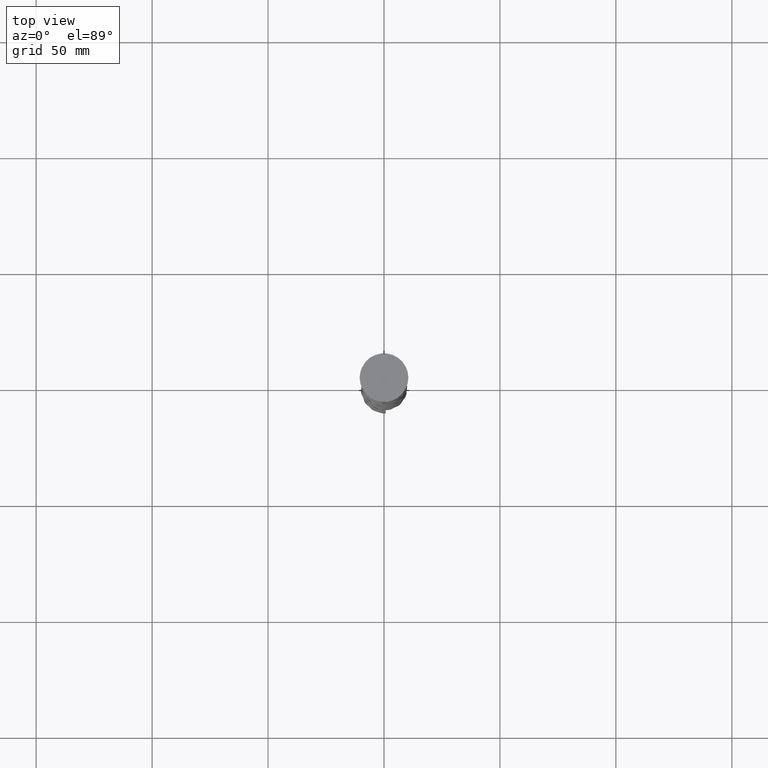
[diagram: clean part render]
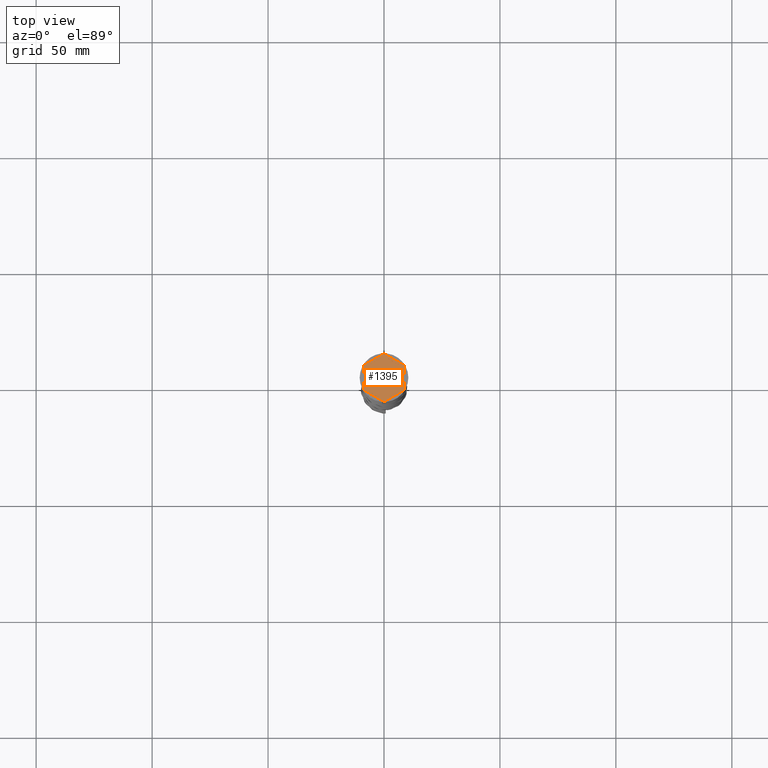
[diagram: same view with one face highlighted and labeled with its STEP entity id]
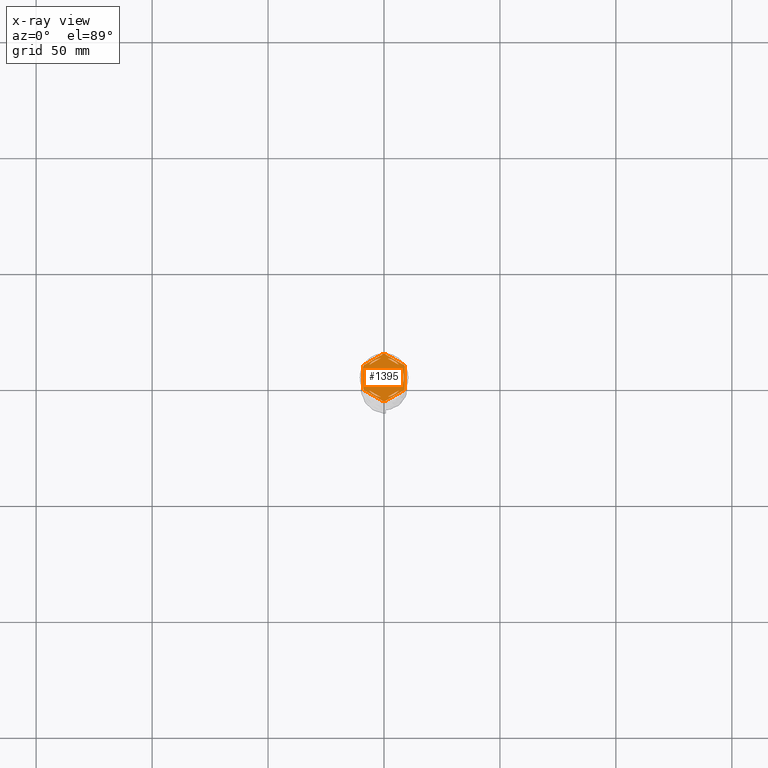
[diagram: x-ray of the same camera — body ghosted, the highlighted face saturated]
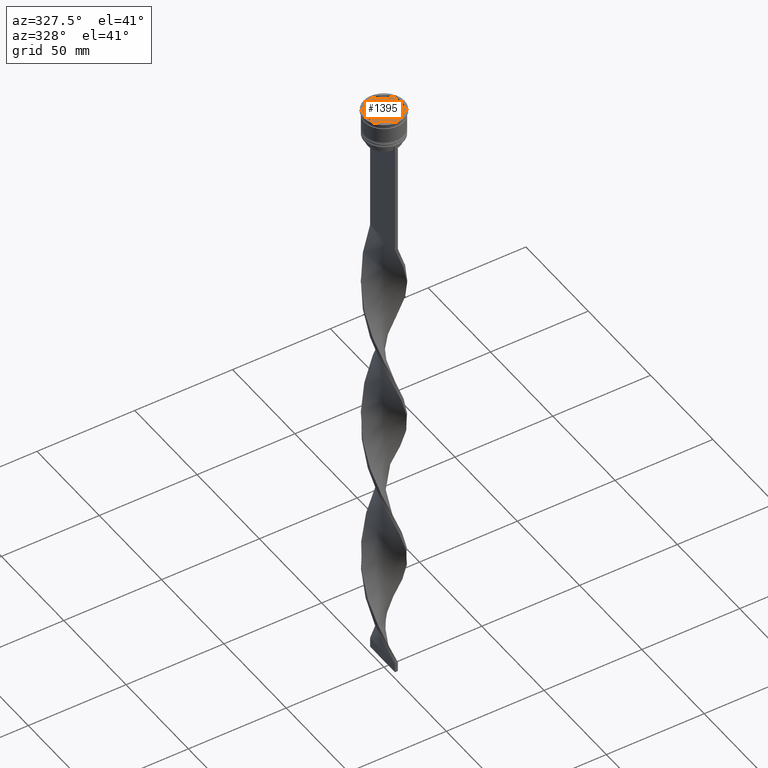
[diagram: same view with one face highlighted and labeled with its STEP entity id]
A machine part, top view. The second image highlights one B-rep face of the part: STEP entity #1395.
The next image is the same camera in x-ray: the body ghosted, the highlighted face saturated — about 0% of this face is hidden behind the body in this view.
A second angle (auxiliary view) of the same face is appended — the face is thin or edge-on in the first view.
In plain terms, the highlighted planar face has unit normal (0, 0, 1).
Its self-contained STEP definition (entity closure, byte-faithful):
#64 = ORIENTED_EDGE ( 'NONE', *, *, #4061, .F. ) ;
#65 = VERTEX_POINT ( 'NONE', #1212 ) ;
#76 = EDGE_CURVE ( 'NONE', #426, #1556, #4028, .T. ) ;
#93 = DIRECTION ( 'NONE',  ( 1.000000000000000000, 0.000000000000000000, 0.000000000000000000 ) ) ;
#94 = DIRECTION ( 'NONE',  ( 0.8660254037844387076, -0.4999999999999997224, 0.000000000000000000 ) ) ;
#124 = CARTESIAN_POINT ( 'NONE',  ( 0.000000000000000000, 10.39230484541326582, -1.000000000000000000 ) ) ;
#127 = AXIS2_PLACEMENT_3D ( 'NONE', #617, #4198, #2225 ) ;
#139 = DIRECTION ( 'NONE',  ( -0.000000000000000000, -0.000000000000000000, -1.000000000000000000 ) ) ;
#143 = ORIENTED_EDGE ( 'NONE', *, *, #4227, .T. ) ;
#194 = VECTOR ( 'NONE', #805, 1000.000000000000114 ) ;
#239 = ORIENTED_EDGE ( 'NONE', *, *, #3901, .F. ) ;
#248 = EDGE_CURVE ( 'NONE', #4241, #1989, #1990, .T. ) ;
#256 = CARTESIAN_POINT ( 'NONE',  ( 6.487468592766552078, 5.492062568641001619, -1.000000000000000888 ) ) ;
#260 = DIRECTION ( 'NONE',  ( -0.000000000000000000, -0.000000000000000000, -1.000000000000000000 ) ) ;
#271 = DIRECTION ( 'NONE',  ( 1.000000000000000000, 0.000000000000000000, 0.000000000000000000 ) ) ;
#292 = CARTESIAN_POINT ( 'NONE',  ( 1.512531407233452363, -8.364343891910017703, -1.000000000000000888 ) ) ;
#296 = CARTESIAN_POINT ( 'NONE',  ( 6.487468592766547637, -5.492062568641006060, -1.000000000000000888 ) ) ;
#309 = LINE ( 'NONE', #4037, #3093 ) ;
#320 = DIRECTION ( 'NONE',  ( 0.000000000000000000, 1.000000000000000000, 0.000000000000000000 ) ) ;
#421 = DIRECTION ( 'NONE',  ( 1.000000000000000000, 0.000000000000000000, -0.000000000000000000 ) ) ;
#426 = VERTEX_POINT ( 'NONE', #256 ) ;
#440 = DIRECTION ( 'NONE',  ( 1.000000000000000000, 0.000000000000000000, 0.000000000000000000 ) ) ;
#473 = LINE ( 'NONE', #124, #2787 ) ;
#486 = CARTESIAN_POINT ( 'NONE',  ( -8.000000000000000000, -2.872281323269016085, -1.000000000000000888 ) ) ;
#510 = LINE ( 'NONE', #2133, #1294 ) ;
#524 = FACE_BOUND ( 'NONE', #3984, .T. ) ;
#533 = VERTEX_POINT ( 'NONE', #296 ) ;
#553 = EDGE_CURVE ( 'NONE', #3148, #3641, #1727, .T. ) ;
#573 = EDGE_CURVE ( 'NONE', #1827, #3722, #1941, .T. ) ;
#595 = EDGE_CURVE ( 'NONE', #2036, #2303, #3284, .T. ) ;
#617 = CARTESIAN_POINT ( 'NONE',  ( 0.000000000000000000, 0.000000000000000000, -1.000000000000000000 ) ) ;
#643 = ORIENTED_EDGE ( 'NONE', *, *, #4224, .F. ) ;
#666 = CARTESIAN_POINT ( 'NONE',  ( 8.673617379884035472E-16, 9.237604307034013473, -1.000000000000000888 ) ) ;
#688 = ORIENTED_EDGE ( 'NONE', *, *, #595, .T. ) ;
#720 = DIRECTION ( 'NONE',  ( -0.8660254037844385966, 0.5000000000000000000, 0.000000000000000000 ) ) ;
#731 = CARTESIAN_POINT ( 'NONE',  ( 0.000000000000000000, 0.000000000000000000, -1.000000000000000000 ) ) ;
#733 = CIRCLE ( 'NONE', #3156, 10.19999999999999574 ) ;
#738 = CIRCLE ( 'NONE', #875, 8.500000000000000000 ) ;
#747 = VECTOR ( 'NONE', #720, 1000.000000000000227 ) ;
#759 = CARTESIAN_POINT ( 'NONE',  ( -8.656921938165295316, -5.394228634059957450, -1.000000000000000000 ) ) ;
#779 = LINE ( 'NONE', #824, #2817 ) ;
#805 = DIRECTION ( 'NONE',  ( -0.8660254037844387076, -0.4999999999999998335, 0.000000000000000000 ) ) ;
#820 = CIRCLE ( 'NONE', #2820, 10.19999999999999574 ) ;
#824 = CARTESIAN_POINT ( 'NONE',  ( -9.000000000000001776, 5.196152422706632024, -1.000000000000000000 ) ) ;
#847 = CARTESIAN_POINT ( 'NONE',  ( 0.000000000000000000, 0.000000000000000000, -1.000000000000000000 ) ) ;
#848 = CARTESIAN_POINT ( 'NONE',  ( 8.000000000000000000, -2.872281323269017417, -1.000000000000000888 ) ) ;
#875 = AXIS2_PLACEMENT_3D ( 'NONE', #4180, #2912, #271 ) ;
#954 = VECTOR ( 'NONE', #1361, 1000.000000000000114 ) ;
#990 = CARTESIAN_POINT ( 'NONE',  ( 0.000000000000000000, 0.000000000000000000, -1.000000000000000000 ) ) ;
#1044 = CARTESIAN_POINT ( 'NONE',  ( -1.512531407233448366, -8.364343891910017703, -1.000000000000000888 ) ) ;
#1048 = CARTESIAN_POINT ( 'NONE',  ( -1.512531407233451475, 8.364343891910017703, -1.000000000000000888 ) ) ;
#1053 = EDGE_CURVE ( 'NONE', #1621, #1461, #473, .T. ) ;
#1062 = VERTEX_POINT ( 'NONE', #3067 ) ;
#1082 = ORIENTED_EDGE ( 'NONE', *, *, #2089, .F. ) ;
#1083 = ORIENTED_EDGE ( 'NONE', *, *, #3475, .F. ) ;
#1116 = ORIENTED_EDGE ( 'NONE', *, *, #2236, .T. ) ;
#1149 = CIRCLE ( 'NONE', #1974, 10.19999999999999574 ) ;
#1160 = AXIS2_PLACEMENT_3D ( 'NONE', #2400, #2357, #440 ) ;
#1212 = CARTESIAN_POINT ( 'NONE',  ( 8.656921938165297092, -5.394228634059953009, -1.000000000000000000 ) ) ;
#1215 = CIRCLE ( 'NONE', #3367, 8.500000000000000000 ) ;
#1246 = DIRECTION ( 'NONE',  ( -0.000000000000000000, -0.000000000000000000, -1.000000000000000000 ) ) ;
#1293 = VERTEX_POINT ( 'NONE', #486 ) ;
#1294 = VECTOR ( 'NONE', #1480, 1000.000000000000000 ) ;
#1307 = EDGE_CURVE ( 'NONE', #2291, #4033, #1215, .T. ) ;
#1355 = CIRCLE ( 'NONE', #1904, 10.19999999999999574 ) ;
#1361 = DIRECTION ( 'NONE',  ( 0.8660254037844384856, 0.5000000000000003331, -0.000000000000000000 ) ) ;
#1395 = ADVANCED_FACE ( 'NONE', ( #524, #2812, #1842, #1433, #2424, #3752, #2754 ), #4036, .T. ) ;
#1417 = EDGE_CURVE ( 'NONE', #3665, #1461, #733, .T. ) ;
#1433 = FACE_BOUND ( 'NONE', #3404, .T. ) ;
#1461 = VERTEX_POINT ( 'NONE', #3794 ) ;
#1472 = CARTESIAN_POINT ( 'NONE',  ( 8.656921938165297092, 5.394228634059953897, -1.000000000000000000 ) ) ;
#1480 = DIRECTION ( 'NONE',  ( 0.000000000000000000, 1.000000000000000000, 0.000000000000000000 ) ) ;
#1546 = EDGE_CURVE ( 'NONE', #3937, #1062, #1149, .T. ) ;
#1556 = VERTEX_POINT ( 'NONE', #3450 ) ;
#1580 = ORIENTED_EDGE ( 'NONE', *, *, #4105, .F. ) ;
#1585 = DIRECTION ( 'NONE',  ( 0.8660254037844385966, -0.4999999999999999445, 0.000000000000000000 ) ) ;
#1600 = ORIENTED_EDGE ( 'NONE', *, *, #76, .F. ) ;
#1616 = CARTESIAN_POINT ( 'NONE',  ( 0.000000000000000000, 0.000000000000000000, -1.000000000000000000 ) ) ;
#1621 = VERTEX_POINT ( 'NONE', #1825 ) ;
#1639 = VERTEX_POINT ( 'NONE', #848 ) ;
#1673 = CARTESIAN_POINT ( 'NONE',  ( 9.000000000000001776, -4.799999999999988276, -1.000000000000000000 ) ) ;
#1690 = DIRECTION ( 'NONE',  ( 1.000000000000000000, 8.881784197001252323E-16, 0.000000000000000000 ) ) ;
#1693 = EDGE_LOOP ( 'NONE', ( #688, #1580, #4208, #1968, #2010, #2013, #1758, #2270, #1116, #1776, #143, #2617 ) ) ;
#1713 = CARTESIAN_POINT ( 'NONE',  ( 0.000000000000000000, 0.000000000000000000, -1.000000000000000000 ) ) ;
#1727 = CIRCLE ( 'NONE', #2894, 10.19999999999999574 ) ;
#1739 = CARTESIAN_POINT ( 'NONE',  ( 0.000000000000000000, 0.000000000000000000, -1.000000000000000000 ) ) ;
#1758 = ORIENTED_EDGE ( 'NONE', *, *, #3412, .T. ) ;
#1760 = LINE ( 'NONE', #3036, #1795 ) ;
#1761 = DIRECTION ( 'NONE',  ( 1.000000000000000000, 0.000000000000000000, 0.000000000000000000 ) ) ;
#1766 = EDGE_LOOP ( 'NONE', ( #1082, #3636 ) ) ;
#1776 = ORIENTED_EDGE ( 'NONE', *, *, #1546, .F. ) ;
#1795 = VECTOR ( 'NONE', #3343, 1000.000000000000000 ) ;
#1797 = EDGE_CURVE ( 'NONE', #4033, #1293, #2321, .T. ) ;
#1812 = ORIENTED_EDGE ( 'NONE', *, *, #2215, .F. ) ;
#1825 = CARTESIAN_POINT ( 'NONE',  ( -0.3430780618347059052, 10.19422863405994306, -1.000000000000000000 ) ) ;
#1827 = VERTEX_POINT ( 'NONE', #4267 ) ;
#1842 = FACE_BOUND ( 'NONE', #2174, .T. ) ;
#1904 = AXIS2_PLACEMENT_3D ( 'NONE', #731, #3980, #1690 ) ;
#1928 = CARTESIAN_POINT ( 'NONE',  ( 7.999999999999998224, -4.618802153517008513, -1.000000000000000888 ) ) ;
#1941 = LINE ( 'NONE', #666, #954 ) ;
#1943 = DIRECTION ( 'NONE',  ( 1.000000000000000000, 0.000000000000000000, 0.000000000000000000 ) ) ;
#1957 = CARTESIAN_POINT ( 'NONE',  ( 0.000000000000000000, 0.000000000000000000, -1.000000000000000000 ) ) ;
#1966 = CARTESIAN_POINT ( 'NONE',  ( 8.000000000000000000, 2.872281323269014752, -1.000000000000000888 ) ) ;
#1968 = ORIENTED_EDGE ( 'NONE', *, *, #3488, .F. ) ;
#1974 = AXIS2_PLACEMENT_3D ( 'NONE', #1739, #3058, #93 ) ;
#1989 = VERTEX_POINT ( 'NONE', #3944 ) ;
#1990 = LINE ( 'NONE', #2333, #2561 ) ;
#2010 = ORIENTED_EDGE ( 'NONE', *, *, #1053, .T. ) ;
#2012 = CARTESIAN_POINT ( 'NONE',  ( 9.000000000000001776, -5.196152422706632024, -1.000000000000000000 ) ) ;
#2013 = ORIENTED_EDGE ( 'NONE', *, *, #1417, .F. ) ;
#2035 = VERTEX_POINT ( 'NONE', #1966 ) ;
#2036 = VERTEX_POINT ( 'NONE', #1673 ) ;
#2054 = EDGE_CURVE ( 'NONE', #2036, #65, #1355, .T. ) ;
#2089 = EDGE_CURVE ( 'NONE', #3722, #1827, #738, .T. ) ;
#2133 = CARTESIAN_POINT ( 'NONE',  ( -8.000000000000000000, 4.618802153517004072, -1.000000000000000888 ) ) ;
#2138 = VECTOR ( 'NONE', #2311, 1000.000000000000000 ) ;
#2174 = EDGE_LOOP ( 'NONE', ( #1083, #3389 ) ) ;
#2215 = EDGE_CURVE ( 'NONE', #1556, #426, #2621, .T. ) ;
#2225 = DIRECTION ( 'NONE',  ( 1.000000000000000000, 0.000000000000000000, 0.000000000000000000 ) ) ;
#2236 = EDGE_CURVE ( 'NONE', #3148, #1062, #309, .T. ) ;
#2243 = DIRECTION ( 'NONE',  ( 0.000000000000000000, 0.000000000000000000, 1.000000000000000000 ) ) ;
#2253 = CARTESIAN_POINT ( 'NONE',  ( 8.000000000000000000, 4.618802153517006737, -1.000000000000000888 ) ) ;
#2270 = ORIENTED_EDGE ( 'NONE', *, *, #553, .F. ) ;
#2284 = DIRECTION ( 'NONE',  ( -0.000000000000000000, -0.000000000000000000, -1.000000000000000000 ) ) ;
#2291 = VERTEX_POINT ( 'NONE', #4234 ) ;
#2303 = VERTEX_POINT ( 'NONE', #4274 ) ;
#2311 = DIRECTION ( 'NONE',  ( -1.877893248421449036E-16, -1.000000000000000000, 0.000000000000000000 ) ) ;
#2321 = CIRCLE ( 'NONE', #4065, 8.500000000000000000 ) ;
#2333 = CARTESIAN_POINT ( 'NONE',  ( -8.000000000000000000, -4.618802153517006737, -1.000000000000000888 ) ) ;
#2357 = DIRECTION ( 'NONE',  ( 0.000000000000000000, 0.000000000000000000, 1.000000000000000000 ) ) ;
#2363 = LINE ( 'NONE', #3691, #747 ) ;
#2368 = DIRECTION ( 'NONE',  ( 1.000000000000000000, 0.000000000000000000, 0.000000000000000000 ) ) ;
#2378 = DIRECTION ( 'NONE',  ( 0.000000000000000000, 0.000000000000000000, 1.000000000000000000 ) ) ;
#2393 = EDGE_LOOP ( 'NONE', ( #3263, #239, #4107 ) ) ;
#2399 = VERTEX_POINT ( 'NONE', #3070 ) ;
#2400 = CARTESIAN_POINT ( 'NONE',  ( 0.000000000000000000, 0.000000000000000000, -1.000000000000000000 ) ) ;
#2403 = DIRECTION ( 'NONE',  ( 1.000000000000000000, 0.000000000000000000, 0.000000000000000000 ) ) ;
#2424 = FACE_BOUND ( 'NONE', #2393, .T. ) ;
#2464 = DIRECTION ( 'NONE',  ( 0.000000000000000000, 0.000000000000000000, 1.000000000000000000 ) ) ;
#2504 = DIRECTION ( 'NONE',  ( 0.000000000000000000, 0.000000000000000000, 1.000000000000000000 ) ) ;
#2561 = VECTOR ( 'NONE', #2966, 1000.000000000000114 ) ;
#2605 = CARTESIAN_POINT ( 'NONE',  ( -9.000000000000001776, -4.799999999999988276, -1.000000000000000000 ) ) ;
#2606 = CIRCLE ( 'NONE', #3235, 8.500000000000000000 ) ;
#2617 = ORIENTED_EDGE ( 'NONE', *, *, #2054, .F. ) ;
#2621 = LINE ( 'NONE', #2253, #3992 ) ;
#2752 = AXIS2_PLACEMENT_3D ( 'NONE', #1957, #1246, #3909 ) ;
#2754 = FACE_OUTER_BOUND ( 'NONE', #1693, .T. ) ;
#2787 = VECTOR ( 'NONE', #3112, 1000.000000000000000 ) ;
#2812 = FACE_BOUND ( 'NONE', #3314, .T. ) ;
#2817 = VECTOR ( 'NONE', #3505, 1000.000000000000000 ) ;
#2820 = AXIS2_PLACEMENT_3D ( 'NONE', #4225, #260, #3638 ) ;
#2894 = AXIS2_PLACEMENT_3D ( 'NONE', #990, #2284, #3633 ) ;
#2912 = DIRECTION ( 'NONE',  ( 0.000000000000000000, 0.000000000000000000, 1.000000000000000000 ) ) ;
#2966 = DIRECTION ( 'NONE',  ( -0.8660254037844385966, 0.4999999999999999445, 0.000000000000000000 ) ) ;
#3036 = CARTESIAN_POINT ( 'NONE',  ( 2.607697573705103160E-15, -10.39230484541326405, -1.000000000000000000 ) ) ;
#3058 = DIRECTION ( 'NONE',  ( -0.000000000000000000, -0.000000000000000000, -1.000000000000000000 ) ) ;
#3067 = CARTESIAN_POINT ( 'NONE',  ( -0.3430780618347024080, -10.19422863405994306, -1.000000000000000000 ) ) ;
#3070 = CARTESIAN_POINT ( 'NONE',  ( 0.3430780618347050170, 10.19422863405994306, -1.000000000000000000 ) ) ;
#3088 = AXIS2_PLACEMENT_3D ( 'NONE', #4125, #2464, #421 ) ;
#3093 = VECTOR ( 'NONE', #94, 1000.000000000000114 ) ;
#3109 = VECTOR ( 'NONE', #320, 1000.000000000000000 ) ;
#3112 = DIRECTION ( 'NONE',  ( -0.8660254037844385966, -0.5000000000000001110, 0.000000000000000000 ) ) ;
#3148 = VERTEX_POINT ( 'NONE', #759 ) ;
#3156 = AXIS2_PLACEMENT_3D ( 'NONE', #3409, #139, #2403 ) ;
#3212 = EDGE_CURVE ( 'NONE', #1639, #2035, #4072, .T. ) ;
#3235 = AXIS2_PLACEMENT_3D ( 'NONE', #1713, #2378, #3385 ) ;
#3263 = ORIENTED_EDGE ( 'NONE', *, *, #1307, .F. ) ;
#3284 = LINE ( 'NONE', #2012, #3109 ) ;
#3304 = DIRECTION ( 'NONE',  ( 0.000000000000000000, 0.000000000000000000, 1.000000000000000000 ) ) ;
#3314 = EDGE_LOOP ( 'NONE', ( #3728, #64 ) ) ;
#3343 = DIRECTION ( 'NONE',  ( 0.8660254037844385966, 0.5000000000000001110, 0.000000000000000000 ) ) ;
#3345 = VERTEX_POINT ( 'NONE', #1472 ) ;
#3367 = AXIS2_PLACEMENT_3D ( 'NONE', #847, #2504, #1761 ) ;
#3385 = DIRECTION ( 'NONE',  ( 1.000000000000000000, 0.000000000000000000, 0.000000000000000000 ) ) ;
#3389 = ORIENTED_EDGE ( 'NONE', *, *, #3900, .F. ) ;
#3404 = EDGE_LOOP ( 'NONE', ( #643, #3574 ) ) ;
#3409 = CARTESIAN_POINT ( 'NONE',  ( 0.000000000000000000, 0.000000000000000000, -1.000000000000000000 ) ) ;
#3412 = EDGE_CURVE ( 'NONE', #3665, #3641, #779, .T. ) ;
#3450 = CARTESIAN_POINT ( 'NONE',  ( 1.512531407233448366, 8.364343891910017703, -1.000000000000000888 ) ) ;
#3475 = EDGE_CURVE ( 'NONE', #3535, #533, #3792, .T. ) ;
#3488 = EDGE_CURVE ( 'NONE', #1621, #2399, #3650, .T. ) ;
#3505 = DIRECTION ( 'NONE',  ( 0.000000000000000000, -1.000000000000000000, 0.000000000000000000 ) ) ;
#3535 = VERTEX_POINT ( 'NONE', #292 ) ;
#3574 = ORIENTED_EDGE ( 'NONE', *, *, #248, .F. ) ;
#3633 = DIRECTION ( 'NONE',  ( 1.000000000000000000, 0.000000000000000000, 0.000000000000000000 ) ) ;
#3636 = ORIENTED_EDGE ( 'NONE', *, *, #573, .F. ) ;
#3638 = DIRECTION ( 'NONE',  ( 1.000000000000000000, 0.000000000000000000, 0.000000000000000000 ) ) ;
#3641 = VERTEX_POINT ( 'NONE', #2605 ) ;
#3650 = CIRCLE ( 'NONE', #2752, 10.19999999999999574 ) ;
#3665 = VERTEX_POINT ( 'NONE', #4088 ) ;
#3691 = CARTESIAN_POINT ( 'NONE',  ( 9.000000000000001776, 5.196152422706632912, -1.000000000000000000 ) ) ;
#3722 = VERTEX_POINT ( 'NONE', #1048 ) ;
#3724 = EDGE_CURVE ( 'NONE', #3345, #2399, #2363, .T. ) ;
#3728 = ORIENTED_EDGE ( 'NONE', *, *, #3212, .F. ) ;
#3752 = FACE_BOUND ( 'NONE', #1766, .T. ) ;
#3773 = CARTESIAN_POINT ( 'NONE',  ( -8.673617379884035472E-16, -9.237604307034013473, -1.000000000000000888 ) ) ;
#3792 = CIRCLE ( 'NONE', #127, 8.500000000000000000 ) ;
#3794 = CARTESIAN_POINT ( 'NONE',  ( -8.656921938165297092, 5.394228634059953009, -1.000000000000000000 ) ) ;
#3877 = CARTESIAN_POINT ( 'NONE',  ( -8.500000000000000000, 0.000000000000000000, -1.000000000000000000 ) ) ;
#3900 = EDGE_CURVE ( 'NONE', #533, #3535, #4205, .T. ) ;
#3901 = EDGE_CURVE ( 'NONE', #1293, #2291, #510, .T. ) ;
#3909 = DIRECTION ( 'NONE',  ( 1.000000000000000000, 1.598721155460225418E-14, 0.000000000000000000 ) ) ;
#3917 = LINE ( 'NONE', #1928, #2138 ) ;
#3937 = VERTEX_POINT ( 'NONE', #4265 ) ;
#3944 = CARTESIAN_POINT ( 'NONE',  ( -6.487468592766552078, -5.492062568641001619, -1.000000000000000888 ) ) ;
#3980 = DIRECTION ( 'NONE',  ( -0.000000000000000000, -0.000000000000000000, -1.000000000000000000 ) ) ;
#3984 = EDGE_LOOP ( 'NONE', ( #1600, #1812 ) ) ;
#3992 = VECTOR ( 'NONE', #1585, 1000.000000000000114 ) ;
#4001 = CARTESIAN_POINT ( 'NONE',  ( 0.000000000000000000, 0.000000000000000000, -1.000000000000000000 ) ) ;
#4028 = CIRCLE ( 'NONE', #4230, 8.500000000000000000 ) ;
#4033 = VERTEX_POINT ( 'NONE', #3877 ) ;
#4036 = PLANE ( 'NONE',  #3088 ) ;
#4037 = CARTESIAN_POINT ( 'NONE',  ( -9.000000000000001776, -5.196152422706632912, -1.000000000000000000 ) ) ;
#4061 = EDGE_CURVE ( 'NONE', #2035, #1639, #3917, .T. ) ;
#4065 = AXIS2_PLACEMENT_3D ( 'NONE', #4001, #3304, #2368 ) ;
#4072 = CIRCLE ( 'NONE', #1160, 8.500000000000000000 ) ;
#4088 = CARTESIAN_POINT ( 'NONE',  ( -9.000000000000001776, 4.799999999999988276, -1.000000000000000000 ) ) ;
#4105 = EDGE_CURVE ( 'NONE', #3345, #2303, #820, .T. ) ;
#4107 = ORIENTED_EDGE ( 'NONE', *, *, #1797, .F. ) ;
#4125 = CARTESIAN_POINT ( 'NONE',  ( 0.000000000000000000, 0.000000000000000000, -1.000000000000000000 ) ) ;
#4180 = CARTESIAN_POINT ( 'NONE',  ( 0.000000000000000000, 0.000000000000000000, -1.000000000000000000 ) ) ;
#4198 = DIRECTION ( 'NONE',  ( 0.000000000000000000, 0.000000000000000000, 1.000000000000000000 ) ) ;
#4205 = LINE ( 'NONE', #3773, #194 ) ;
#4208 = ORIENTED_EDGE ( 'NONE', *, *, #3724, .T. ) ;
#4224 = EDGE_CURVE ( 'NONE', #1989, #4241, #2606, .T. ) ;
#4225 = CARTESIAN_POINT ( 'NONE',  ( 0.000000000000000000, 0.000000000000000000, -1.000000000000000000 ) ) ;
#4227 = EDGE_CURVE ( 'NONE', #3937, #65, #1760, .T. ) ;
#4230 = AXIS2_PLACEMENT_3D ( 'NONE', #1616, #2243, #1943 ) ;
#4234 = CARTESIAN_POINT ( 'NONE',  ( -8.000000000000000000, 2.872281323269016085, -1.000000000000000888 ) ) ;
#4241 = VERTEX_POINT ( 'NONE', #1044 ) ;
#4265 = CARTESIAN_POINT ( 'NONE',  ( 0.3430780618347059052, -10.19422863405994306, -1.000000000000000000 ) ) ;
#4267 = CARTESIAN_POINT ( 'NONE',  ( -6.487468592766553854, 5.492062568640999842, -1.000000000000000888 ) ) ;
#4274 = CARTESIAN_POINT ( 'NONE',  ( 9.000000000000001776, 4.799999999999988276, -1.000000000000000000 ) ) ;